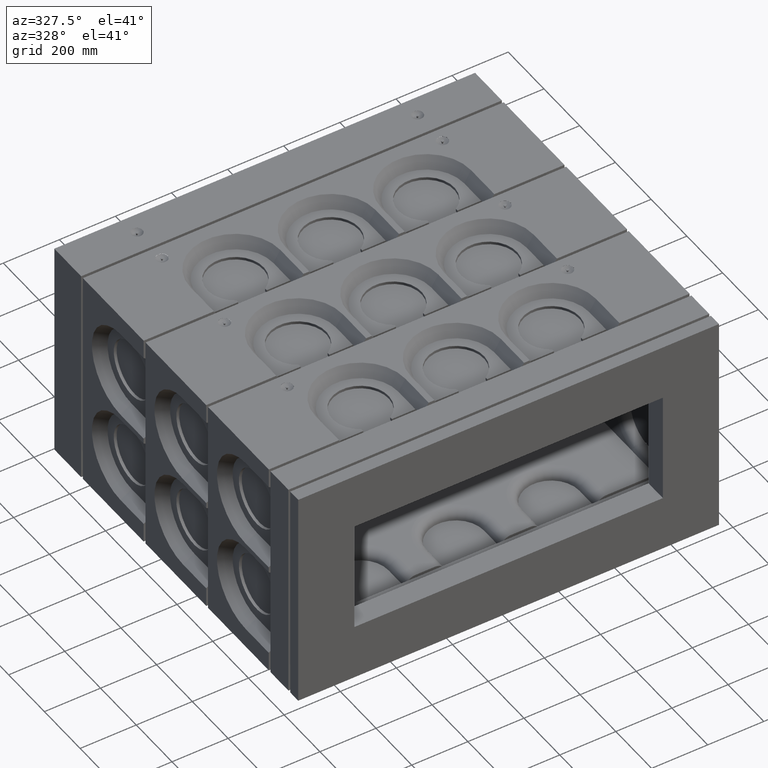
[diagram: clean part render]
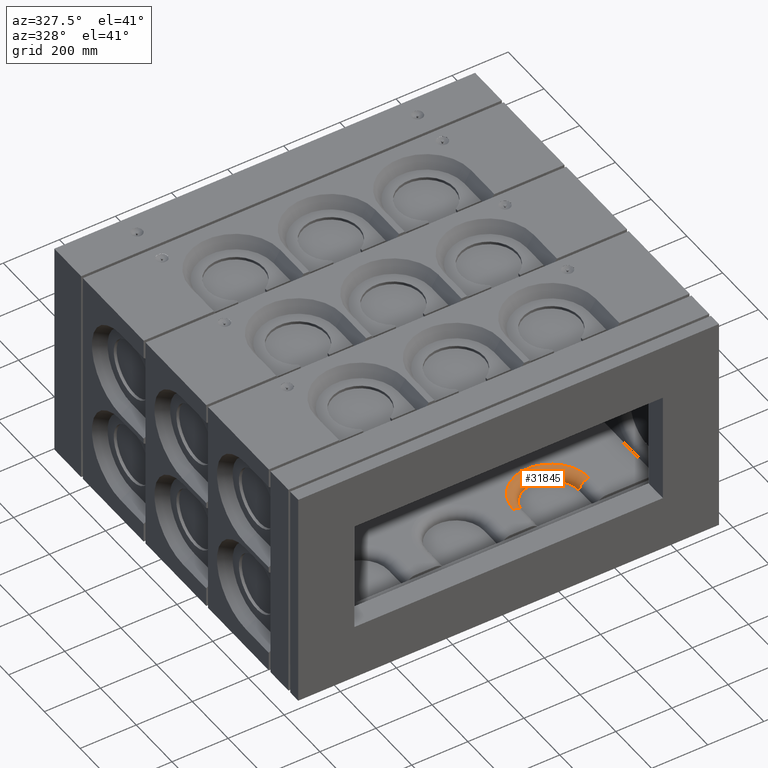
[diagram: same view with one face highlighted and labeled with its STEP entity id]
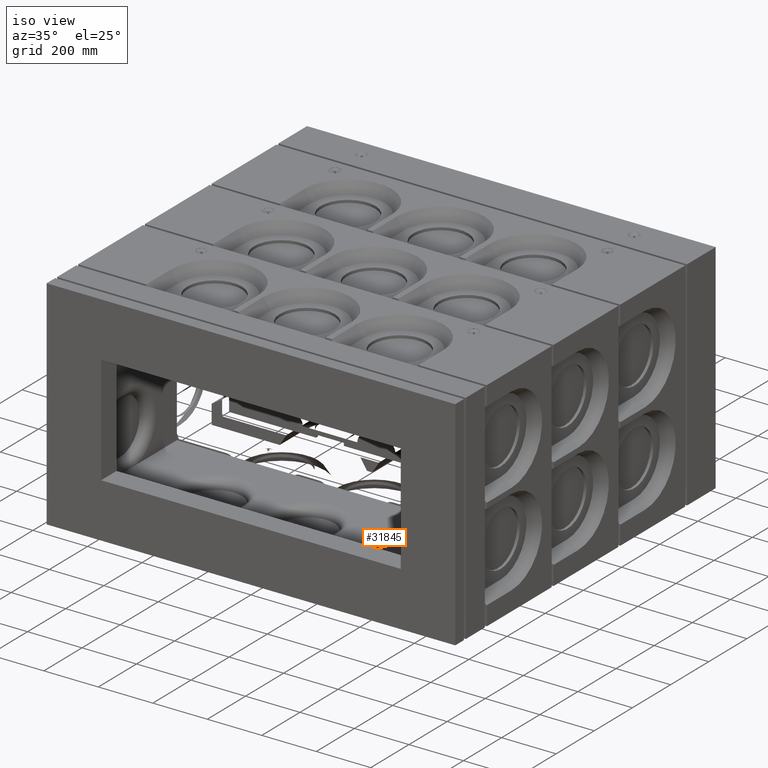
[diagram: same view with one face highlighted and labeled with its STEP entity id]
A machine part, auxiliary view. The second image highlights one B-rep face of the part: STEP entity #31845.
A second angle (iso view) of the same face is appended — the face is thin or edge-on in the first view.
In plain terms, the highlighted toroidal blend (fillet) surface has major radius 135 mm and minor (blend) radius 35 mm.
Its self-contained STEP definition (entity closure, byte-faithful):
#586 = DIRECTION ( 'NONE',  ( -1.734723475976807711E-17, 4.996003610813204432E-16, -1.000000000000000000 ) ) ;
#2536 = CARTESIAN_POINT ( 'NONE',  ( 240.0000000000000568, 295.0000000000003979, -335.0000000000003411 ) ) ;
#3815 = CIRCLE ( 'NONE', #41908, 35.00000000000002842 ) ;
#5148 = EDGE_LOOP ( 'NONE', ( #32735, #9873, #15104, #25717 ) ) ;
#9578 = EDGE_CURVE ( 'NONE', #13095, #27605, #12254, .T. ) ;
#9756 = DIRECTION ( 'NONE',  ( 1.000000000000000000, 8.666684749742564076E-33, -1.734723475976807711E-17 ) ) ;
#9873 = ORIENTED_EDGE ( 'NONE', *, *, #35267, .F. ) ;
#10604 = DIRECTION ( 'NONE',  ( 1.000000000000000000, 0.0000000000000000000, 0.0000000000000000000 ) ) ;
#11722 = EDGE_CURVE ( 'NONE', #13095, #41351, #35044, .T. ) ;
#12254 = CIRCLE ( 'NONE', #37640, 99.99999999999997158 ) ;
#13095 = VERTEX_POINT ( 'NONE', #2536 ) ;
#13475 = AXIS2_PLACEMENT_3D ( 'NONE', #17714, #586, #10604 ) ;
#14089 = DIRECTION ( 'NONE',  ( 1.881626355904905735E-48, 1.000000000000000000, 2.775557561562891351E-16 ) ) ;
#14635 = CARTESIAN_POINT ( 'NONE',  ( 475.0000000000000000, 295.0000000000003979, -300.0000000000003411 ) ) ;
#15104 = ORIENTED_EDGE ( 'NONE', *, *, #11722, .F. ) ;
#15646 = CARTESIAN_POINT ( 'NONE',  ( 440.0000000000000000, 295.0000000000003979, -335.0000000000003411 ) ) ;
#17422 = FACE_OUTER_BOUND ( 'NONE', #5148, .T. ) ;
#17714 = CARTESIAN_POINT ( 'NONE',  ( 340.0000000000000000, 295.0000000000003979, -300.0000000000003411 ) ) ;
#18262 = DIRECTION ( 'NONE',  ( -1.000000000000000000, 0.0000000000000000000, 0.0000000000000000000 ) ) ;
#21460 = CIRCLE ( 'NONE', #13475, 134.9999999999999432 ) ;
#25023 = CARTESIAN_POINT ( 'NONE',  ( 340.0000000000000000, 295.0000000000003979, -335.0000000000003411 ) ) ;
#25717 = ORIENTED_EDGE ( 'NONE', *, *, #9578, .T. ) ;
#27173 = VERTEX_POINT ( 'NONE', #14635 ) ;
#27605 = VERTEX_POINT ( 'NONE', #15646 ) ;
#29764 = CARTESIAN_POINT ( 'NONE',  ( 340.0000000000000000, 295.0000000000003979, -335.0000000000003411 ) ) ;
#30300 = TOROIDAL_SURFACE ( 'NONE', #36072, 134.9999999999999716, 35.00000000000000000 ) ;
#31176 = DIRECTION ( 'NONE',  ( 1.000000000000000000, 0.0000000000000000000, 0.0000000000000000000 ) ) ;
#31845 = ADVANCED_FACE ( 'NONE', ( #17422 ), #30300, .T. ) ;
#32735 = ORIENTED_EDGE ( 'NONE', *, *, #40799, .T. ) ;
#33856 = DIRECTION ( 'NONE',  ( 1.734723475976807711E-17, -4.996003610813204432E-16, 1.000000000000000000 ) ) ;
#34344 = CARTESIAN_POINT ( 'NONE',  ( 475.0000000000000000, 295.0000000000003979, -335.0000000000003411 ) ) ;
#35044 = CIRCLE ( 'NONE', #44648, 35.00000000000000000 ) ;
#35267 = EDGE_CURVE ( 'NONE', #41351, #27173, #21460, .T. ) ;
#35666 = DIRECTION ( 'NONE',  ( -1.000000000000000000, 0.0000000000000000000, 0.0000000000000000000 ) ) ;
#36072 = AXIS2_PLACEMENT_3D ( 'NONE', #29764, #33856, #9756 ) ;
#37640 = AXIS2_PLACEMENT_3D ( 'NONE', #25023, #42313, #18262 ) ;
#38576 = CARTESIAN_POINT ( 'NONE',  ( 205.0000000000000568, 295.0000000000003979, -335.0000000000003411 ) ) ;
#40799 = EDGE_CURVE ( 'NONE', #27605, #27173, #3815, .T. ) ;
#41079 = CARTESIAN_POINT ( 'NONE',  ( 205.0000000000000568, 295.0000000000003979, -300.0000000000003411 ) ) ;
#41351 = VERTEX_POINT ( 'NONE', #41079 ) ;
#41908 = AXIS2_PLACEMENT_3D ( 'NONE', #34344, #14089, #31176 ) ;
#42055 = DIRECTION ( 'NONE',  ( -1.881626355904905735E-48, -1.000000000000000000, -2.775557561562891351E-16 ) ) ;
#42313 = DIRECTION ( 'NONE',  ( -1.734723475976807711E-17, 4.996003610813204432E-16, -1.000000000000000000 ) ) ;
#44648 = AXIS2_PLACEMENT_3D ( 'NONE', #38576, #42055, #35666 ) ;